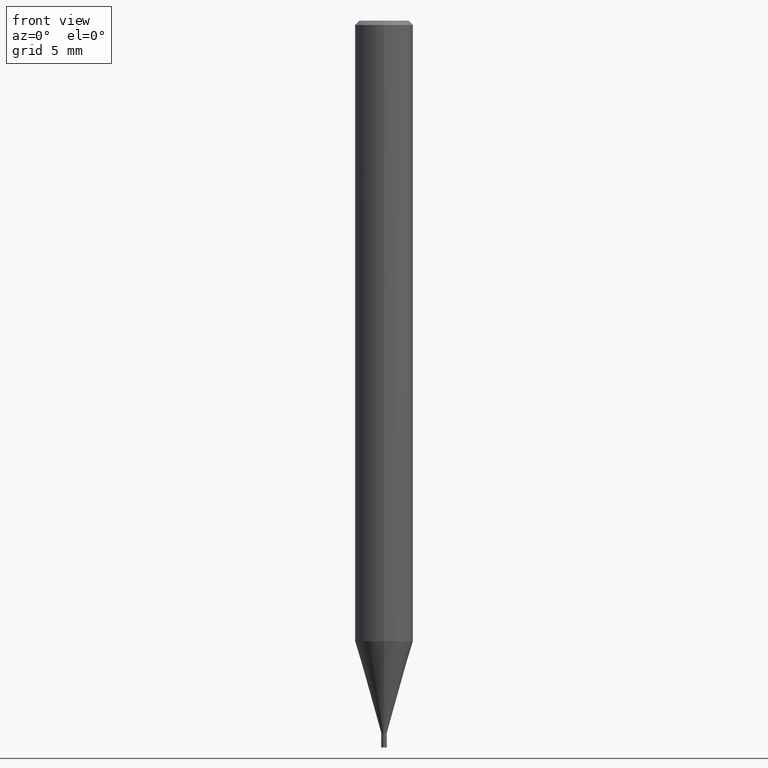
[diagram: clean part render]
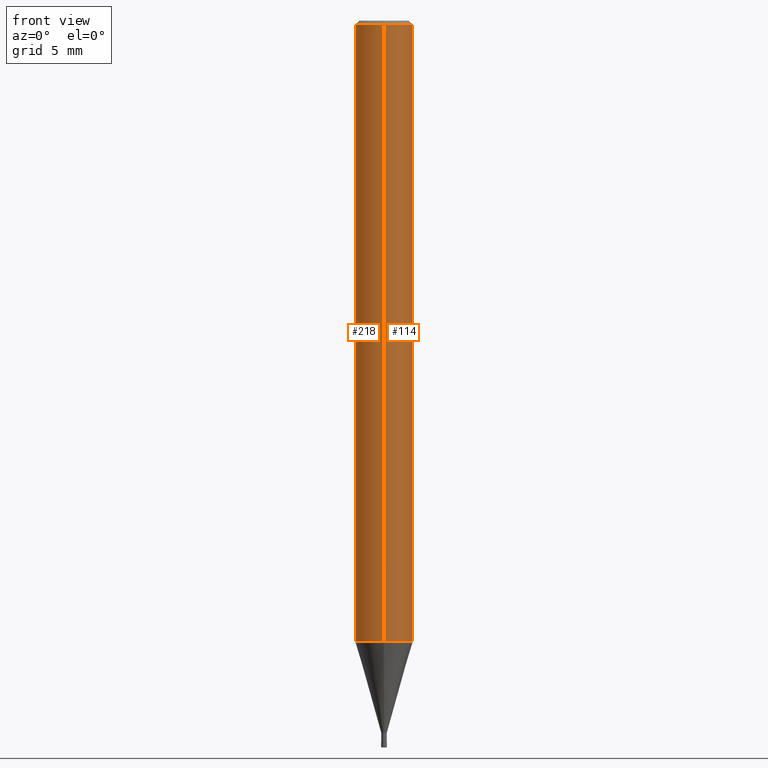
[diagram: same view with one multi-face feature highlighted, each face labeled with its STEP entity id]
A machine part, front view. The highlighted faces form ONE feature: a constant-radius fillet chain: 2 tangent blend faces with common blend radius 2 mm. The faces share edges in the B-rep.
Their STEP definitions:
[1] entity #218 (Cylinder):
#100=VERTEX_POINT('',#253);
#108=VERTEX_POINT('',#261);
#112=EDGE_CURVE('',#108,#100,#265,.T.);
#140=EDGE_CURVE('',#100,#194,#299,.T.);
#194=VERTEX_POINT('',#361);
#214=EDGE_CURVE('',#216,#194,#383,.T.);
#216=VERTEX_POINT('',#385);
#218=ADVANCED_FACE('',(#387),#388,.T.);
#228=EDGE_CURVE('',#216,#108,#399,.T.);
#253=CARTESIAN_POINT('',(0.0,2.0,-0.299999999999997));
#261=CARTESIAN_POINT('',(2.44921270764475E-016,-2.0,-0.299999999999997));
#265=CIRCLE('',#431,2.0);
#299=LINE('',#471,#472);
#361=CARTESIAN_POINT('',(0.0,2.0,-42.688));
#383=CIRCLE('',#578,2.0);
#385=CARTESIAN_POINT('',(2.44921270764475E-016,-2.0,-42.688));
#387=FACE_OUTER_BOUND('',#582,.T.);
#388=CYLINDRICAL_SURFACE('',#583,2.0);
#399=LINE('',#597,#598);
#431=AXIS2_PLACEMENT_3D('',#607,#608,#609);
#471=CARTESIAN_POINT('',(-2.44921270764475E-016,2.0,-21.494));
#472=VECTOR('',#664,1.0);
#578=AXIS2_PLACEMENT_3D('',#774,#775,#776);
#582=EDGE_LOOP('',(#778,#779,#780,#781));
#583=AXIS2_PLACEMENT_3D('',#782,#783,#784);
#597=CARTESIAN_POINT('',(2.44921270764475E-016,-2.0,-21.494));
#598=VECTOR('',#799,1.0);
#607=CARTESIAN_POINT('',(0.0,0.0,-0.299999999999997));
#608=DIRECTION('',(0.0,0.0,-1.0));
#609=DIRECTION('',(0.0,1.0,0.0));
#664=DIRECTION('',(0.0,0.0,-1.0));
#774=CARTESIAN_POINT('',(0.0,0.0,-42.688));
#775=DIRECTION('',(0.0,0.0,-1.0));
#776=DIRECTION('',(0.0,1.0,0.0));
#778=ORIENTED_EDGE('',*,*,#140,.T.);
#779=ORIENTED_EDGE('',*,*,#214,.F.);
#780=ORIENTED_EDGE('',*,*,#228,.T.);
#781=ORIENTED_EDGE('',*,*,#112,.T.);
#782=CARTESIAN_POINT('',(0.0,0.0,-21.494));
#783=DIRECTION('',(-0.0,-0.0,1.0));
#784=DIRECTION('',(0.0,1.0,0.0));
#799=DIRECTION('',(-0.0,-0.0,1.0));
[2] entity #114 (Cylinder):
#100=VERTEX_POINT('',#253);
#108=VERTEX_POINT('',#261);
#114=ADVANCED_FACE('',(#267),#268,.T.);
#140=EDGE_CURVE('',#100,#194,#299,.T.);
#148=EDGE_CURVE('',#100,#108,#308,.T.);
#180=EDGE_CURVE('',#194,#216,#344,.T.);
#194=VERTEX_POINT('',#361);
#216=VERTEX_POINT('',#385);
#228=EDGE_CURVE('',#216,#108,#399,.T.);
#253=CARTESIAN_POINT('',(0.0,2.0,-0.299999999999997));
#261=CARTESIAN_POINT('',(2.44921270764475E-016,-2.0,-0.299999999999997));
#267=FACE_OUTER_BOUND('',#433,.T.);
#268=CYLINDRICAL_SURFACE('',#434,2.0);
#299=LINE('',#471,#472);
#308=CIRCLE('',#484,2.0);
#344=CIRCLE('',#531,2.0);
#361=CARTESIAN_POINT('',(0.0,2.0,-42.688));
#385=CARTESIAN_POINT('',(2.44921270764475E-016,-2.0,-42.688));
#399=LINE('',#597,#598);
#433=EDGE_LOOP('',(#611,#612,#613,#614));
#434=AXIS2_PLACEMENT_3D('',#615,#616,#617);
#471=CARTESIAN_POINT('',(-2.44921270764475E-016,2.0,-21.494));
#472=VECTOR('',#664,1.0);
#484=AXIS2_PLACEMENT_3D('',#674,#675,#676);
#531=AXIS2_PLACEMENT_3D('',#727,#728,#729);
#597=CARTESIAN_POINT('',(2.44921270764475E-016,-2.0,-21.494));
#598=VECTOR('',#799,1.0);
#611=ORIENTED_EDGE('',*,*,#140,.F.);
#612=ORIENTED_EDGE('',*,*,#148,.T.);
#613=ORIENTED_EDGE('',*,*,#228,.F.);
#614=ORIENTED_EDGE('',*,*,#180,.F.);
#615=CARTESIAN_POINT('',(0.0,0.0,-21.494));
#616=DIRECTION('',(-0.0,-0.0,1.0));
#617=DIRECTION('',(0.0,1.0,0.0));
#664=DIRECTION('',(0.0,0.0,-1.0));
#674=CARTESIAN_POINT('',(0.0,0.0,-0.299999999999997));
#675=DIRECTION('',(0.0,0.0,-1.0));
#676=DIRECTION('',(0.0,1.0,0.0));
#727=CARTESIAN_POINT('',(0.0,0.0,-42.688));
#728=DIRECTION('',(0.0,0.0,-1.0));
#729=DIRECTION('',(0.0,1.0,0.0));
#799=DIRECTION('',(-0.0,-0.0,1.0));